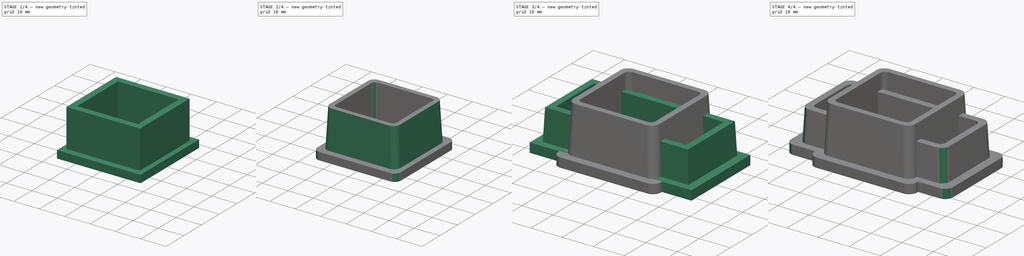
[diagram: build sequence overview — one tinted view per stage of 4, left to right]
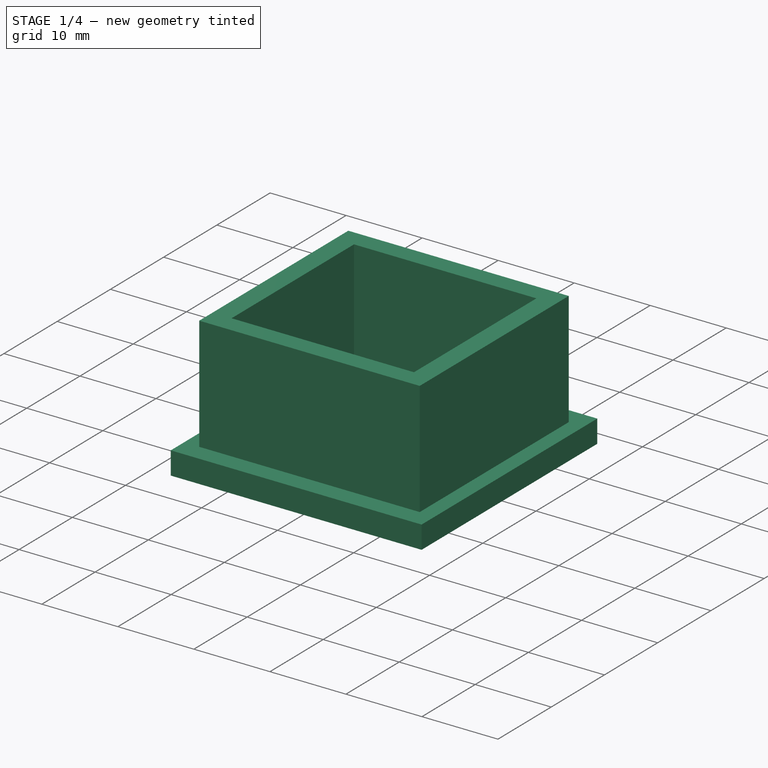
[diagram: stage 1 of 4 — iso view after this stage's code; geometry added in this stage tinted green]
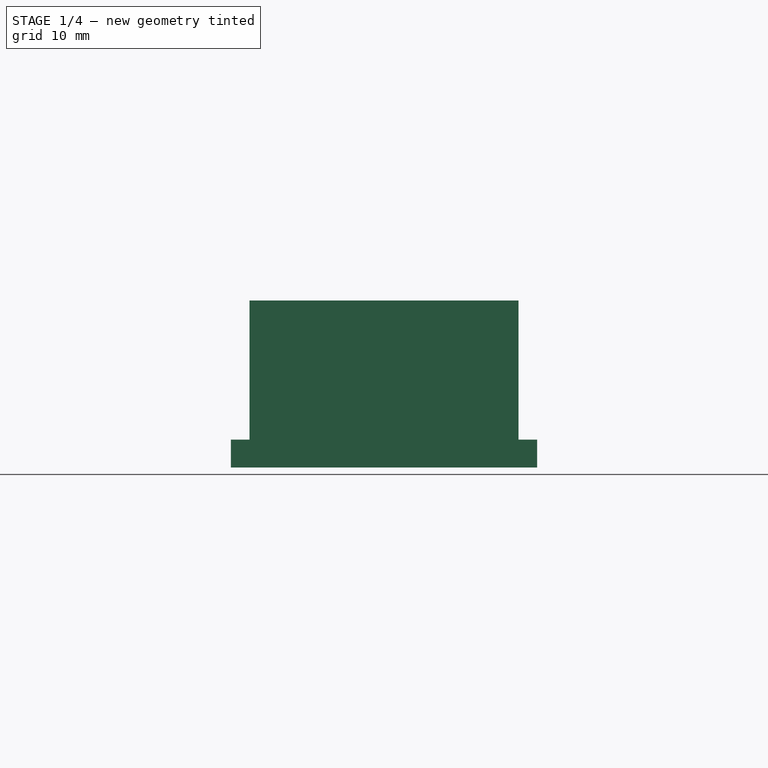
[diagram: stage 1 of 4 — front view after this stage's code; geometry added in this stage tinted green]
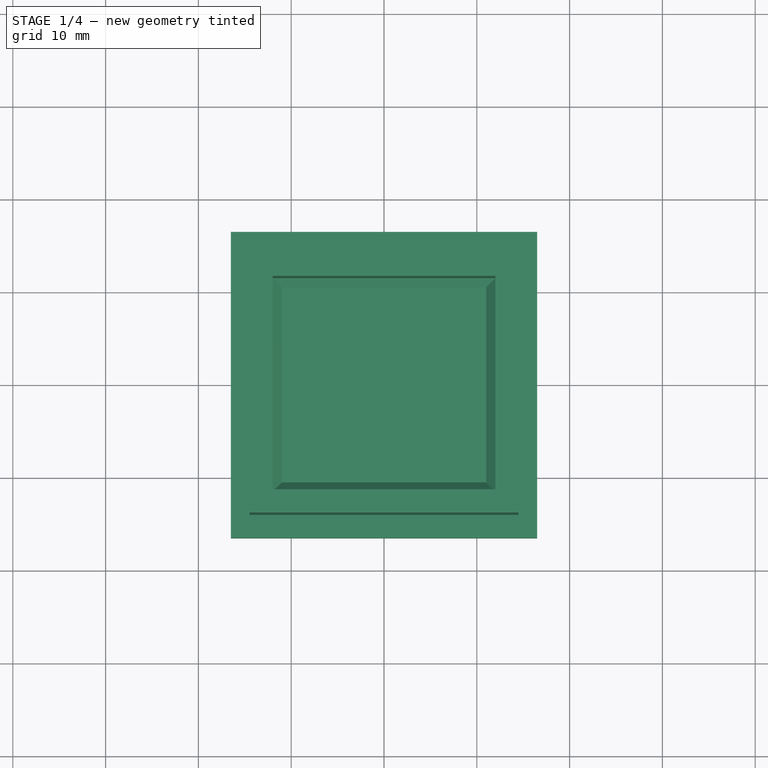
[diagram: stage 1 of 4 — top view after this stage's code; geometry added in this stage tinted green]
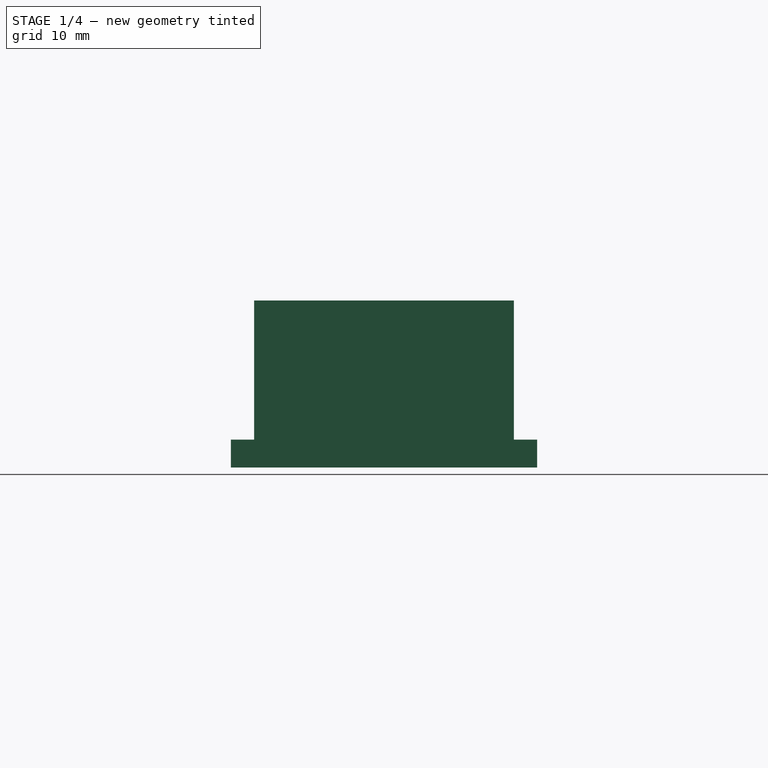
[diagram: stage 1 of 4 — right view after this stage's code; geometry added in this stage tinted green]
FCSTD DOCUMENT  (FreeCAD 1.0R39285 (Git))
Label: Cafe_Arjun_CAD
License: CERN Open Hardware Licence permissive
LicenseURL: https://cern-ohl.web.cern.ch/
objects: Sketcher::SketchObject×4, PartDesign::Pad×4, PartDesign::Fillet×4, PartDesign::Draft×2, PartDesign::Chamfer×2, PartDesign::Body×2
note: 46 computed .brp shape members not serialized (recipe doc carries the construction recipe); baked Part::Feature solids carry a one-line shape summary decoded from their .brp

FEATURE [PartDesign::Body] Body
  AllowCompound = false
  Group = -> [Sketch,Pad,Sketch001,Pad001,Draft,Chamfer,Fillet,Fillet001]
  Origin = -> Origin
  Tip = -> Fillet001
FEATURE [Sketcher::SketchObject] Sketch002
  ArcFitTolerance = 1e-06
  AttachmentSupport = -> [XY_Plane001]
  FullyConstrained = true
  MakeInternals = false
  MapMode = 5
  sketch-geometry (5):
    g0: LineSegment StartX=-16.5 StartY=-16.5 StartZ=0 EndX=16.5 EndY=-16.5 EndZ=0
    g1: LineSegment StartX=16.5 StartY=-16.5 StartZ=0 EndX=16.5 EndY=16.5 EndZ=0
    g2: LineSegment StartX=16.5 StartY=16.5 StartZ=0 EndX=-16.5 EndY=16.5 EndZ=0
    g3: LineSegment StartX=-16.5 StartY=16.5 StartZ=0 EndX=-16.5 EndY=-16.5 EndZ=0
    g4: GeomPoint [constr] X=0 Y=0 Z=0
  constraints (12):
    c: Coincident(g0,g1)
    c: Coincident(g1,g2)
    c: Coincident(g2,g3)
    c: Coincident(g3,g0)
    c: Horizontal(g0)
    c: Horizontal(g2)
    c: Vertical(g1)
    c: Vertical(g3)
    c: Symmetric(g2,g0,g4)
    c: Distance(g1,g3) = 33
    c: Distance(g0,g2) = 33
    c: Coincident(g4,g-1)
FEATURE [PartDesign::Pad] Pad002
  Direction = (0,0,1)
  Length = 3
  Length2 = 10
  Profile = -> Sketch002
  ReferenceAxis = -> Sketch002 [N_Axis]
  Refine = true
  Suppressed = false
  Type = 0
FEATURE [Sketcher::SketchObject] Sketch003
  ArcFitTolerance = 1e-06
  AttachmentSupport = -> [Pad002]
  FullyConstrained = true
  MakeInternals = false
  MapMode = 5
  Placement = pos=(0,0,3) rot=(0,0,1;0rad)
  sketch-geometry (12):
    g0: LineSegment StartX=14.5 StartY=-14 StartZ=0 EndX=14.5 EndY=14 EndZ=0
    g1: LineSegment StartX=14.5 StartY=14 StartZ=0 EndX=-14.5 EndY=14 EndZ=0
    g2: LineSegment StartX=-14.5 StartY=14 StartZ=0 EndX=-14.5 EndY=-14 EndZ=0
    g3: LineSegment StartX=-14.5 StartY=-14 StartZ=0 EndX=14.5 EndY=-14 EndZ=0
    g4: GeomPoint [constr] X=0 Y=0 Z=0
    g5: LineSegment StartX=12 StartY=-11.5 StartZ=0 EndX=12 EndY=11.5 EndZ=0
    g6: LineSegment StartX=12 StartY=11.5 StartZ=0 EndX=-12 EndY=11.5 EndZ=0
    g7: LineSegment StartX=-12 StartY=11.5 StartZ=0 EndX=-12 EndY=-11.5 EndZ=0
    g8: LineSegment StartX=-12 StartY=-11.5 StartZ=0 EndX=12 EndY=-11.5 EndZ=0
    g9: GeomPoint [constr] X=0 Y=0 Z=0
    g10: LineSegment [constr] StartX=-12 StartY=11.5 StartZ=0 EndX=-12 EndY=14 EndZ=0
    g11: LineSegment [constr] StartX=-12 StartY=11.5 StartZ=0 EndX=-14.5 EndY=11.5 EndZ=0
  constraints (30):
    c: Coincident(g0,g1)
    c: Coincident(g1,g2)
    c: Coincident(g2,g3)
    c: Coincident(g3,g0)
    c: Vertical(g0)
    c: Vertical(g2)
    c: Horizontal(g1)
    c: Horizontal(g3)
    c: Symmetric(g2,g0,g4)
    c: Coincident(g4,g-1)
    c: DistanceX(g3,g3) = 29
    c: DistanceY(g2,g2) = 28
    c: Coincident(g5,g6)
    c: Coincident(g6,g7)
    c: Coincident(g7,g8)
    c: Coincident(g8,g5)
    c: Vertical(g5)
    c: Vertical(g7)
    c: Horizontal(g6)
    c: Horizontal(g8)
    c: Symmetric(g7,g5,g9)
    c: Coincident(g9,g4)
    c: Coincident(g10,g6)
    c: PointOnObject(g10,g1)
    c: Vertical(g10)
    c: Coincident(g11,g6)
    c: PointOnObject(g11,g2)
    c: Horizontal(g11)
    c: Equal(g11,g10)
    c: DistanceY(g10,g10) = 2.5
FEATURE [PartDesign::Pad] Pad003
  BaseFeature = -> Pad002
  Direction = (0,0,1)
  Length = 15
  Length2 = 10
  Profile = -> Sketch003
  ReferenceAxis = -> Sketch003 [N_Axis]
  Refine = true
  Suppressed = false
  Type = 0
FEATURE [PartDesign::Chamfer] Chamfer001
  Angle = 45
  Base = -> Pad003 [Face16]
  BaseFeature = -> Pad003
  ChamferType = 0
  FlipDirection = false
  Refine = true
  Size = 1
  Size2 = 1
  SupportTransform = false
  Suppressed = false
  UseAllEdges = false
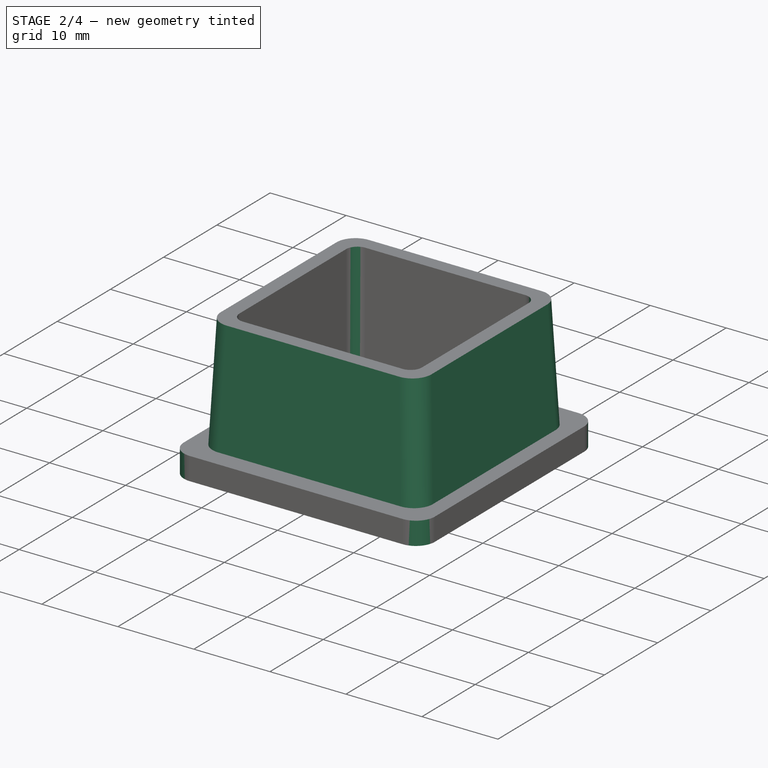
[diagram: stage 2 of 4 — iso view after this stage's code; geometry added in this stage tinted green]
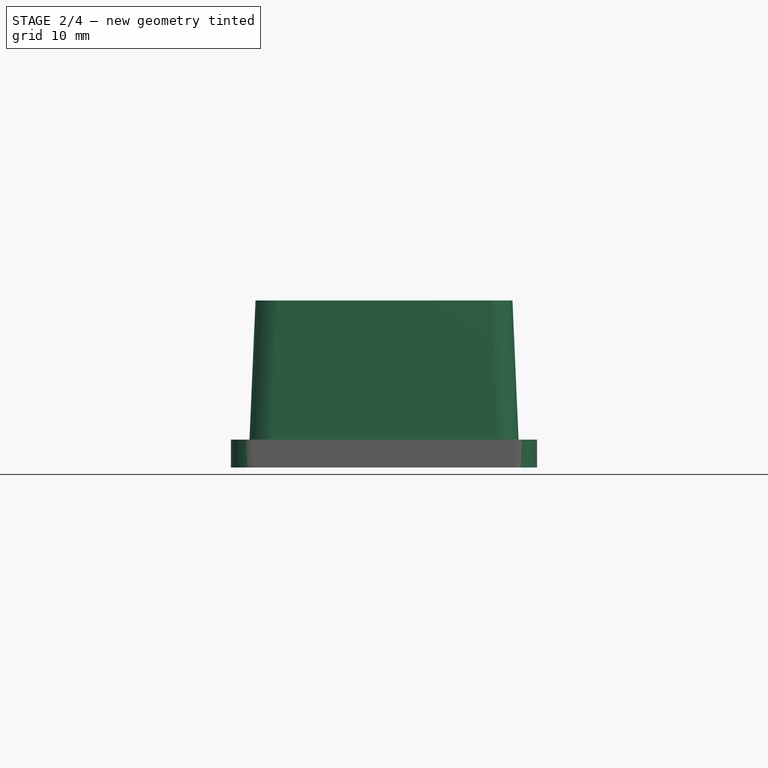
[diagram: stage 2 of 4 — front view after this stage's code; geometry added in this stage tinted green]
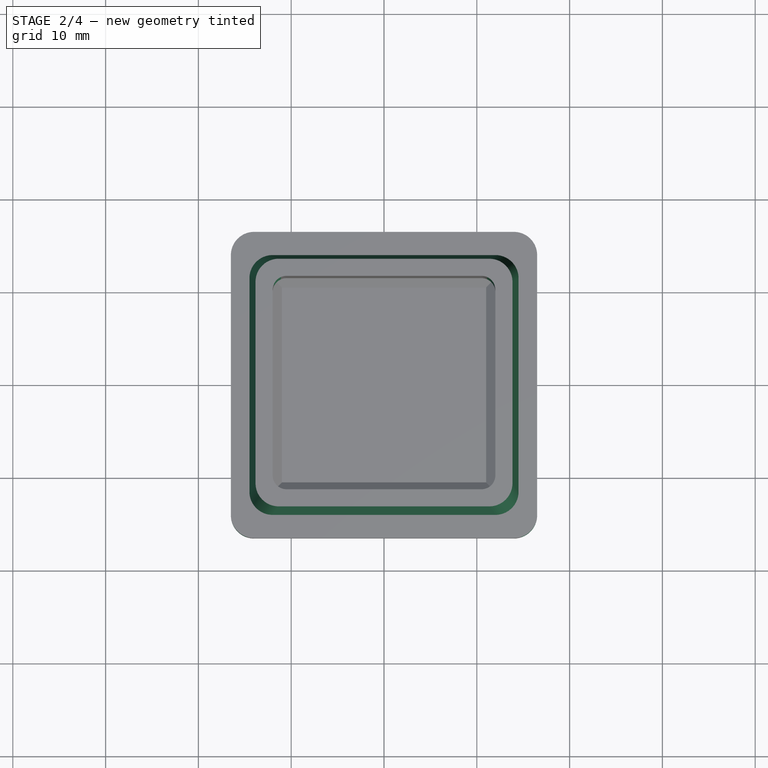
[diagram: stage 2 of 4 — top view after this stage's code; geometry added in this stage tinted green]
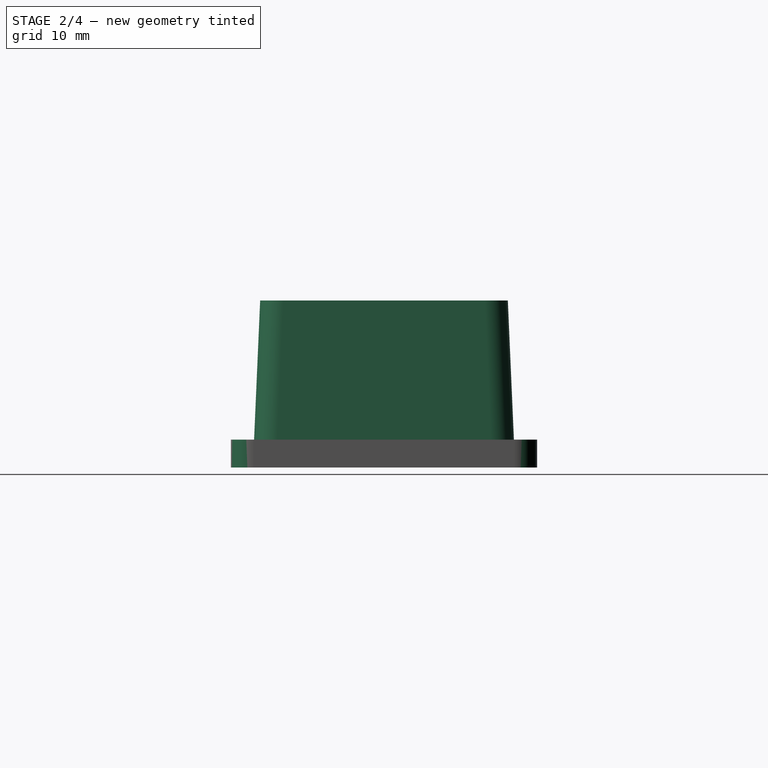
[diagram: stage 2 of 4 — right view after this stage's code; geometry added in this stage tinted green]
FEATURE [PartDesign::Fillet] Fillet002
  Base = -> Chamfer001 [Edge18,Edge4,Edge1,Edge5]
  BaseFeature = -> Chamfer001
  Radius = 1.5
  Refine = true
  SupportTransform = false
  Suppressed = false
  UseAllEdges = false
FEATURE [PartDesign::Draft] Draft001
  Angle = 2.5
  Base = -> Fillet002 [Face17,Face14,Face15,Face16]
  BaseFeature = -> Fillet002
  NeutralPlane = -> Fillet002 [Face19]
  Refine = true
  SupportTransform = false
  Suppressed = false
FEATURE [PartDesign::Fillet] Fillet003
  Base = -> Draft001 [Edge41,Edge46,Edge44,Edge42,Edge58,Edge54,Edge53,Edge56]
  BaseFeature = -> Draft001
  Radius = 2.5
  Refine = true
  SupportTransform = false
  Suppressed = false
  UseAllEdges = false
FEATURE [PartDesign::Body] Body001
  AllowCompound = false
  Group = -> [Sketch002,Pad002,Sketch003,Pad003,Chamfer001,Fillet002,Draft001,Fillet003]
  Origin = -> Origin001
  Tip = -> Fillet003
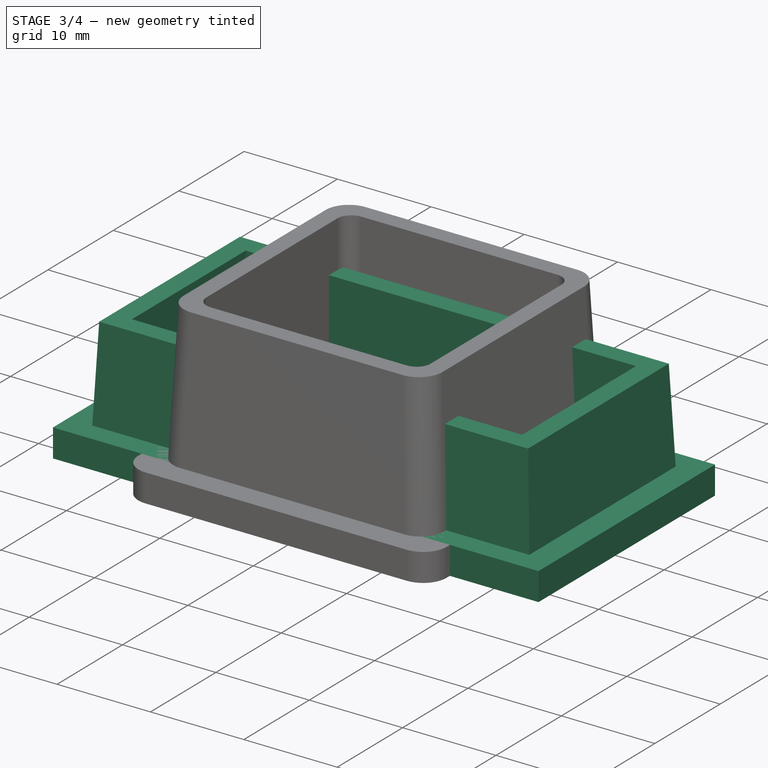
[diagram: stage 3 of 4 — iso view after this stage's code; geometry added in this stage tinted green]
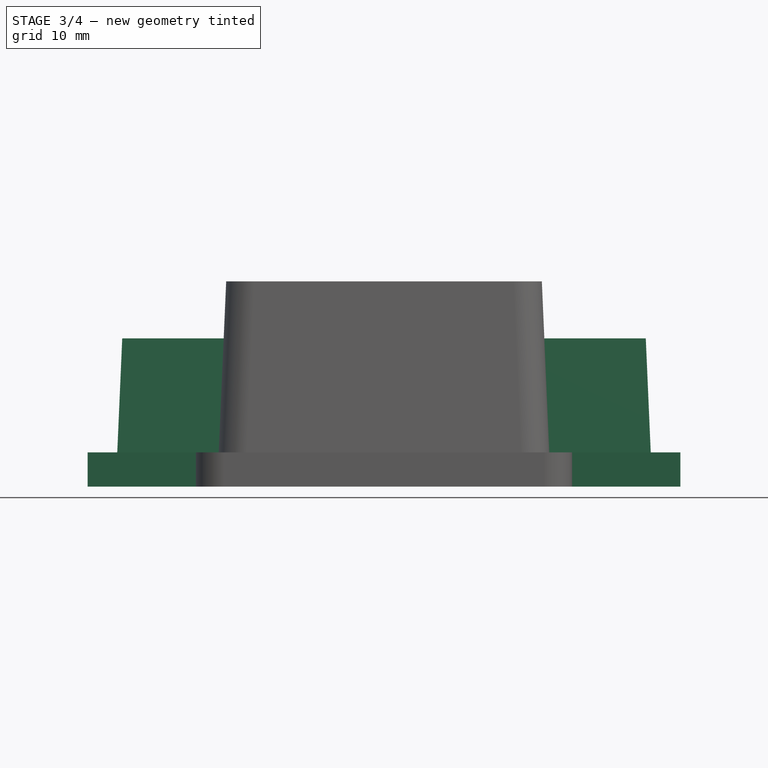
[diagram: stage 3 of 4 — front view after this stage's code; geometry added in this stage tinted green]
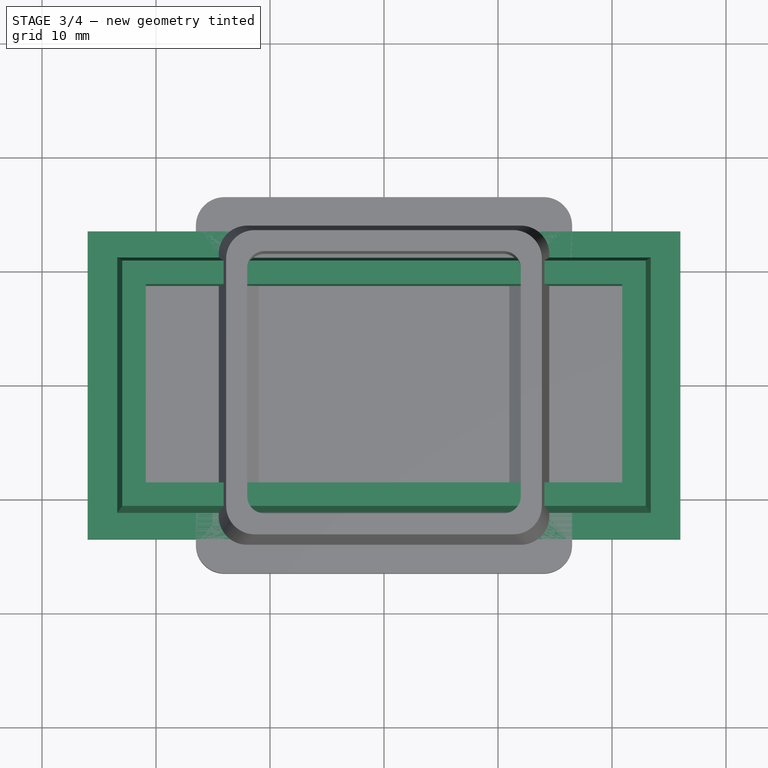
[diagram: stage 3 of 4 — top view after this stage's code; geometry added in this stage tinted green]
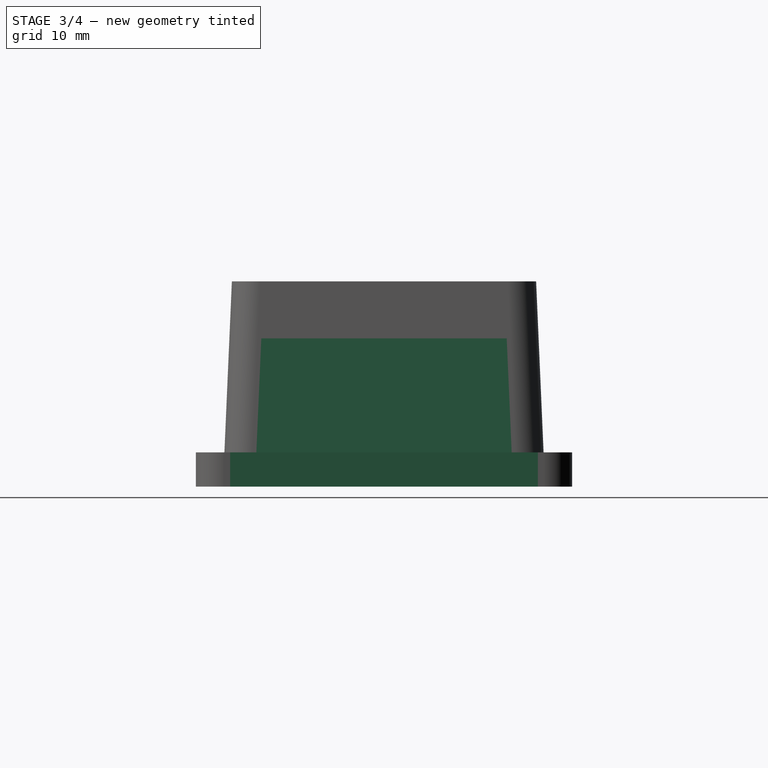
[diagram: stage 3 of 4 — right view after this stage's code; geometry added in this stage tinted green]
FEATURE [Sketcher::SketchObject] Sketch
  ArcFitTolerance = 1e-06
  AttachmentSupport = -> [XY_Plane]
  FullyConstrained = true
  MakeInternals = false
  MapMode = 5
  sketch-geometry (5):
    g0: LineSegment StartX=-26 StartY=-13.5 StartZ=0 EndX=26 EndY=-13.5 EndZ=0
    g1: LineSegment StartX=26 StartY=-13.5 StartZ=0 EndX=26 EndY=13.5 EndZ=0
    g2: LineSegment StartX=26 StartY=13.5 StartZ=0 EndX=-26 EndY=13.5 EndZ=0
    g3: LineSegment StartX=-26 StartY=13.5 StartZ=0 EndX=-26 EndY=-13.5 EndZ=0
    g4: GeomPoint [constr] X=0 Y=0 Z=0
  constraints (12):
    c: Coincident(g0,g1)
    c: Coincident(g1,g2)
    c: Coincident(g2,g3)
    c: Coincident(g3,g0)
    c: Horizontal(g0)
    c: Horizontal(g2)
    c: Vertical(g1)
    c: Vertical(g3)
    c: Symmetric(g2,g0,g4)
    c: Distance(g1,g3) = 52
    c: Distance(g0,g2) = 27
    c: Coincident(g4,g-1)
FEATURE [PartDesign::Pad] Pad
  Direction = (0,0,1)
  Length = 3
  Length2 = 10
  Profile = -> Sketch
  ReferenceAxis = -> Sketch [N_Axis]
  Refine = true
  Suppressed = false
  Type = 0
FEATURE [Sketcher::SketchObject] Sketch001
  ArcFitTolerance = 1e-06
  AttachmentSupport = -> [Pad]
  FullyConstrained = true
  MakeInternals = false
  MapMode = 5
  Placement = pos=(0,0,3) rot=(0,0,1;0rad)
  sketch-geometry (12):
    g0: LineSegment StartX=-23.4 StartY=-11.2 StartZ=0 EndX=23.4 EndY=-11.2 EndZ=0
    g1: LineSegment StartX=23.4 StartY=-11.2 StartZ=0 EndX=23.4 EndY=11.2 EndZ=0
    g2: LineSegment StartX=23.4 StartY=11.2 StartZ=0 EndX=-23.4 EndY=11.2 EndZ=0
    g3: LineSegment StartX=-23.4 StartY=11.2 StartZ=0 EndX=-23.4 EndY=-11.2 EndZ=0
    g4: GeomPoint [constr] X=0 Y=0 Z=0
    g5: LineSegment StartX=20.9 StartY=-8.7 StartZ=0 EndX=20.9 EndY=8.7 EndZ=0
    g6: LineSegment StartX=20.9 StartY=8.7 StartZ=0 EndX=-20.9 EndY=8.7 EndZ=0
    g7: LineSegment StartX=-20.9 StartY=8.7 StartZ=0 EndX=-20.9 EndY=-8.7 EndZ=0
    g8: LineSegment StartX=-20.9 StartY=-8.7 StartZ=0 EndX=20.9 EndY=-8.7 EndZ=0
    g9: GeomPoint [constr] X=0 Y=0 Z=0
    g10: LineSegment [constr] StartX=-20.9 StartY=8.7 StartZ=0 EndX=-20.9 EndY=11.2 EndZ=0
    g11: LineSegment [constr] StartX=-20.9 StartY=8.7 StartZ=0 EndX=-23.4 EndY=8.7 EndZ=0
  constraints (30):
    c: Coincident(g0,g1)
    c: Coincident(g1,g2)
    c: Coincident(g2,g3)
    c: Coincident(g3,g0)
    c: Horizontal(g0)
    c: Horizontal(g2)
    c: Vertical(g1)
    c: Vertical(g3)
    c: Symmetric(g2,g0,g4)
    c: Distance(g1,g3) = 46.8
    c: Distance(g0,g2) = 22.4
    c: Coincident(g4,g-1)
    c: Coincident(g5,g6)
    c: Coincident(g6,g7)
    c: Coincident(g7,g8)
    c: Coincident(g8,g5)
    c: Vertical(g5)
    c: Vertical(g7)
    c: Horizontal(g6)
    c: Horizontal(g8)
    c: Symmetric(g7,g5,g9)
    c: Coincident(g9,g4)
    c: Coincident(g10,g6)
    c: PointOnObject(g10,g2)
    c: Vertical(g10)
    c: Coincident(g11,g6)
    c: PointOnObject(g11,g3)
    c: Horizontal(g11)
    c: Equal(g11,g10)
    c: Distance(g10,g10) = 2.5
FEATURE [PartDesign::Pad] Pad001
  BaseFeature = -> Pad
  Direction = (0,0,1)
  Length = 10
  Length2 = 10
  Profile = -> Sketch001
  ReferenceAxis = -> Sketch001 [N_Axis]
  Refine = true
  Suppressed = false
  Type = 0
FEATURE [PartDesign::Draft] Draft
  Angle = 2.5
  Base = -> Pad001 [Face7,Face8,Face10,Face9]
  BaseFeature = -> Pad001
  NeutralPlane = -> Pad001 [Face5]
  Refine = true
  SupportTransform = false
  Suppressed = false
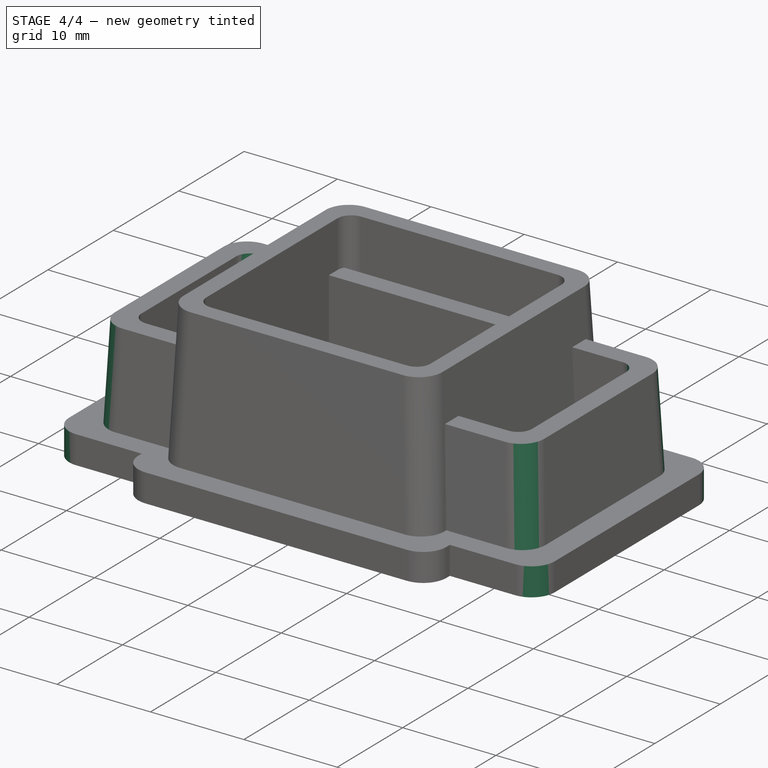
[diagram: stage 4 of 4 — iso view after this stage's code; geometry added in this stage tinted green]
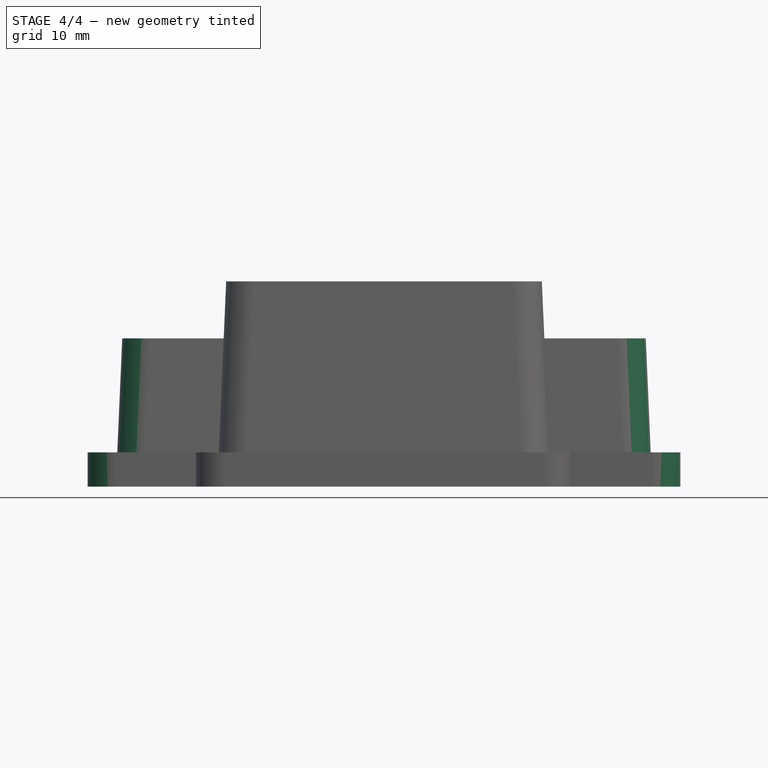
[diagram: stage 4 of 4 — front view after this stage's code; geometry added in this stage tinted green]
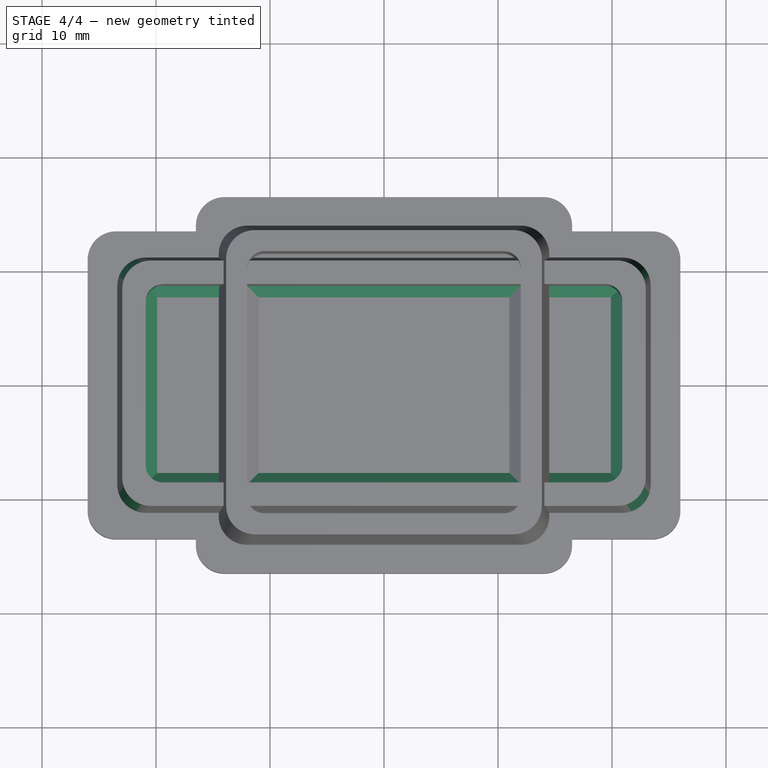
[diagram: stage 4 of 4 — top view after this stage's code; geometry added in this stage tinted green]
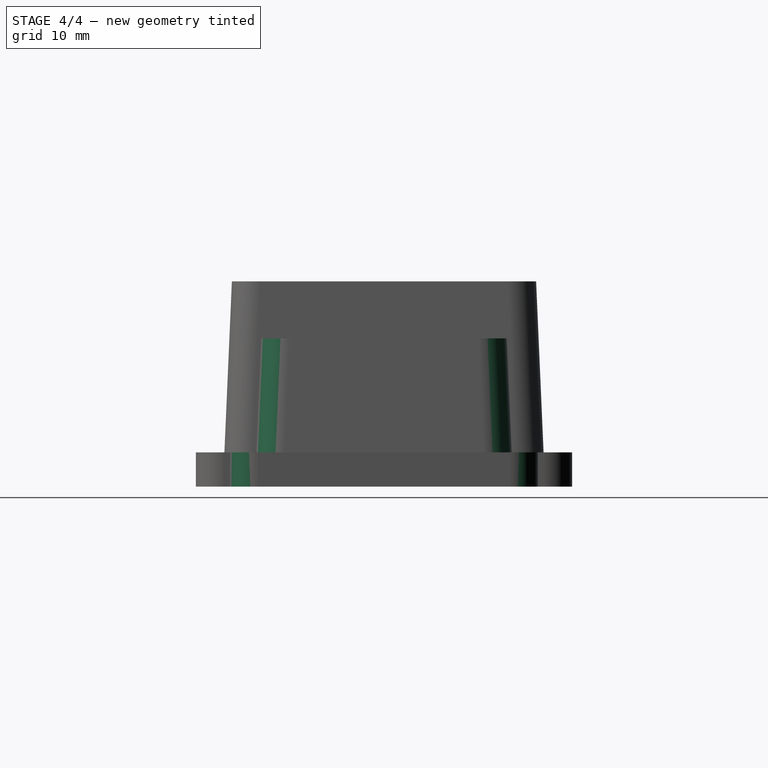
[diagram: stage 4 of 4 — right view after this stage's code; geometry added in this stage tinted green]
FEATURE [PartDesign::Chamfer] Chamfer
  Angle = 45
  Base = -> Draft [Face16]
  BaseFeature = -> Draft
  ChamferType = 0
  FlipDirection = false
  Refine = true
  Size = 1
  Size2 = 1
  SupportTransform = false
  Suppressed = false
  UseAllEdges = false
FEATURE [PartDesign::Fillet] Fillet
  Base = -> Chamfer [Edge18,Edge4,Edge1,Edge5]
  BaseFeature = -> Chamfer
  Radius = 1.5
  Refine = true
  SupportTransform = false
  Suppressed = false
  UseAllEdges = false
FEATURE [PartDesign::Fillet] Fillet001
  Base = -> Fillet [Edge41,Edge42,Edge44,Edge46,Edge54,Edge53,Edge58,Edge56]
  BaseFeature = -> Fillet
  Radius = 2.5
  Refine = true
  SupportTransform = false
  Suppressed = false
  UseAllEdges = false
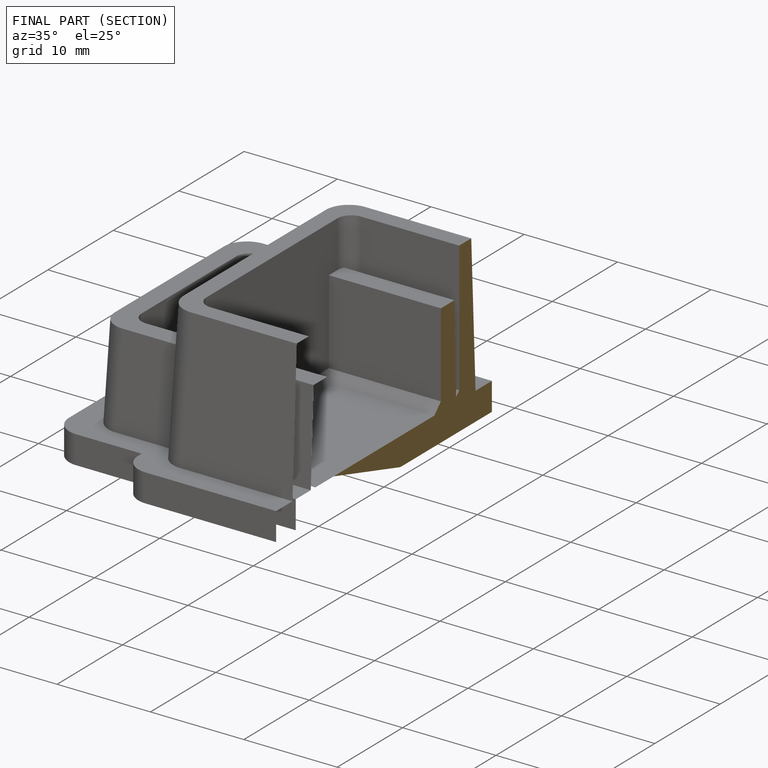
[diagram: finished part — half-section view (interior)]
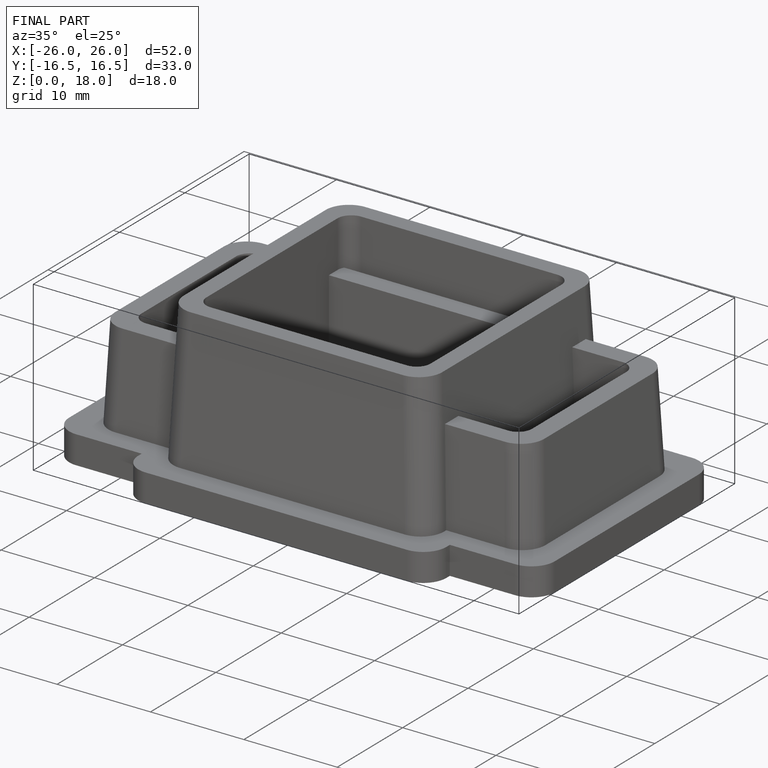
[diagram: finished part — iso view with bounding-box wireframe]
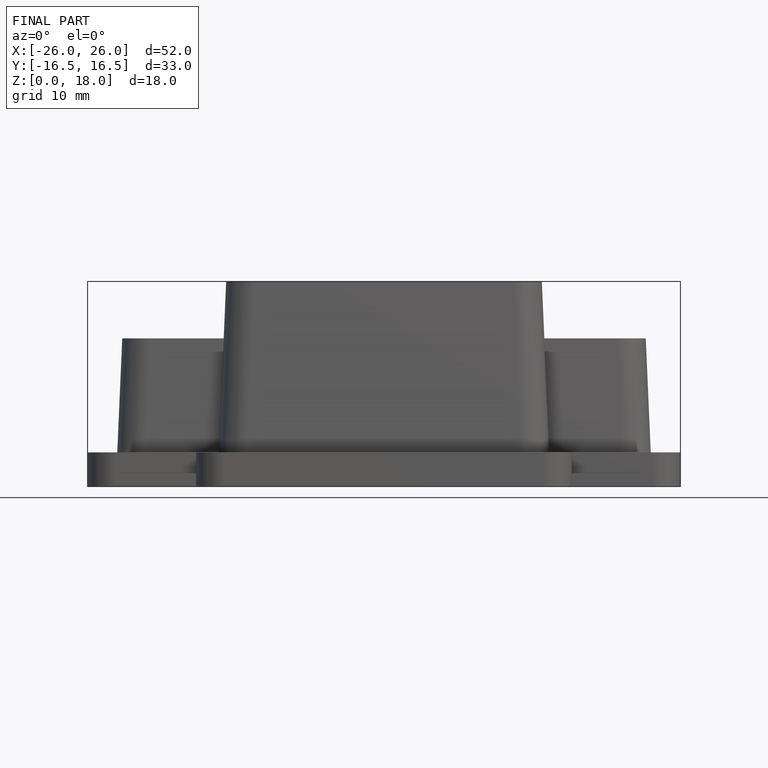
[diagram: finished part — front view with bounding-box wireframe]
